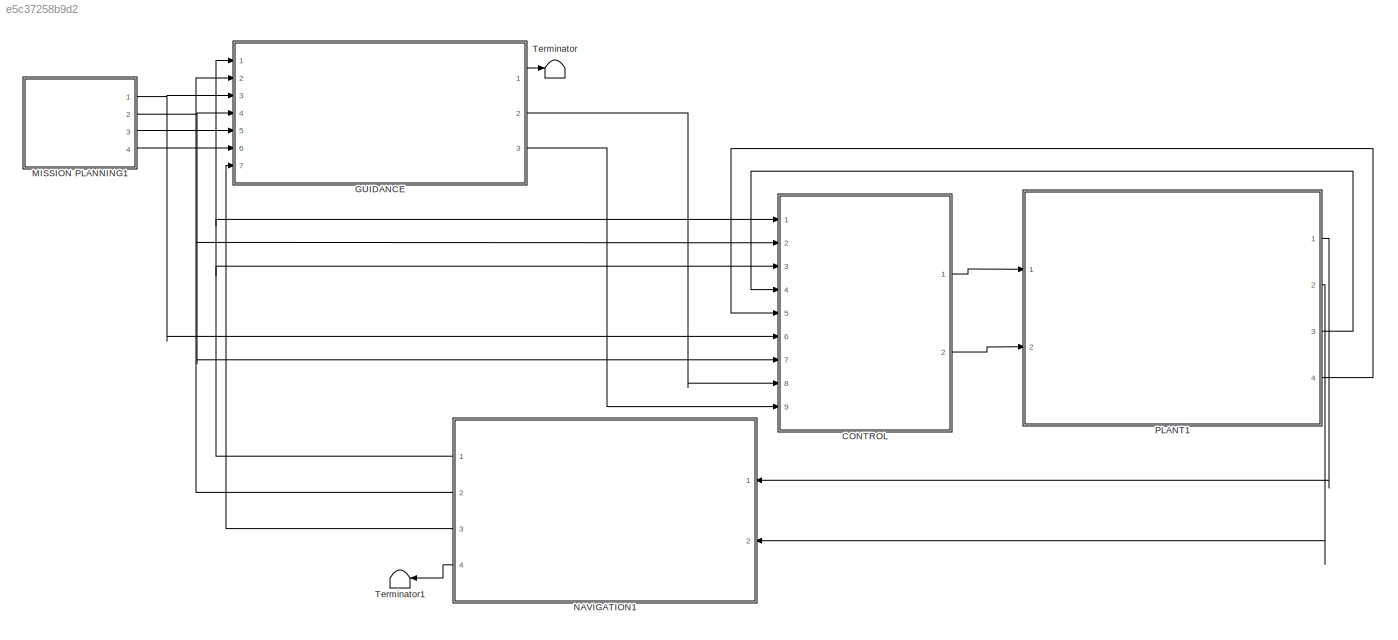
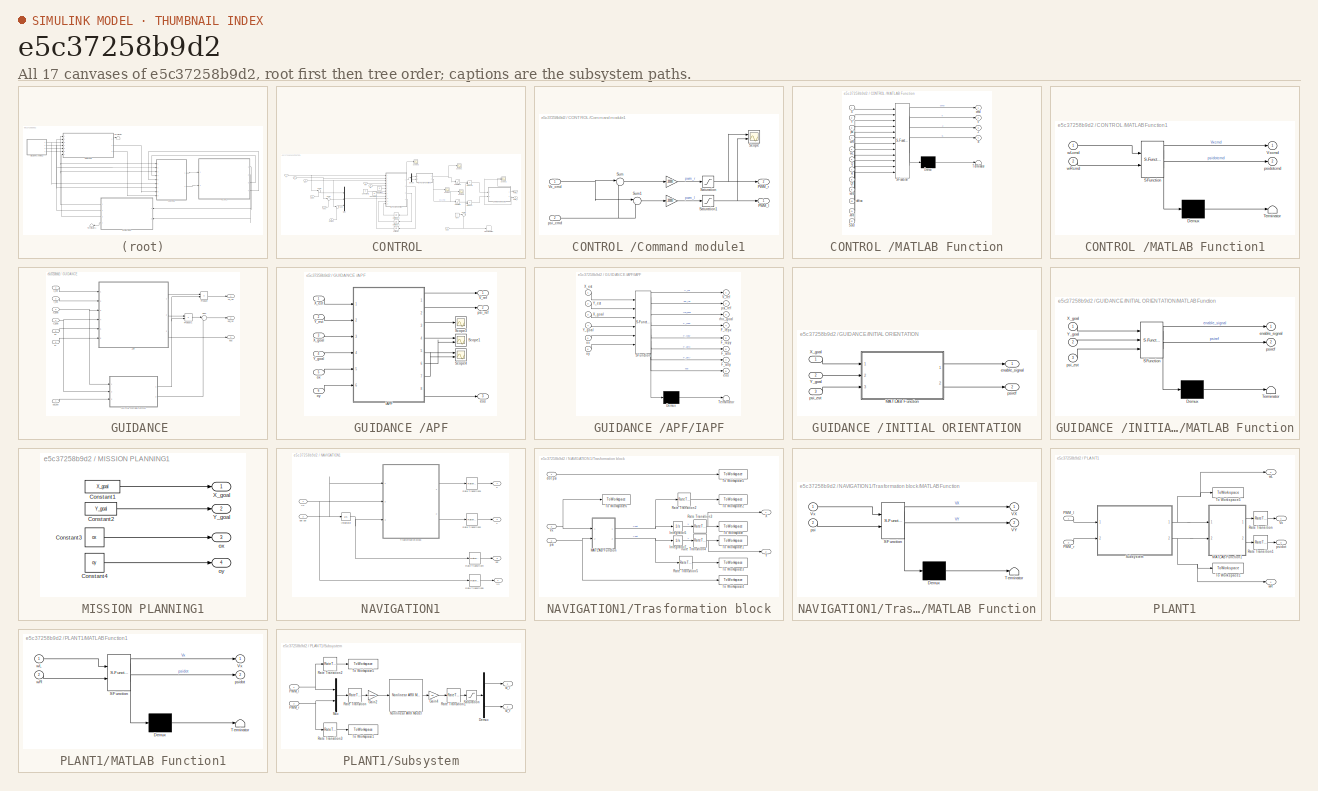
[diagram: thumbnail index - all 17 canvases of the model, root first then tree order]
MODEL slx_e5c37258b9d2
KIND model
CONFIG AbsTol = auto
CONFIG EnableMultiTasking = off
CONFIG FixedStep = 0.01
CONFIG MaxStep = auto
CONFIG MinStep = auto
CONFIG RelTol = 1e-3
CONFIG SampleTimeConstraint = Unconstrained
CONFIG SolverName = ode1
CONFIG StartTime = 0.0
CONFIG StopTime = 60
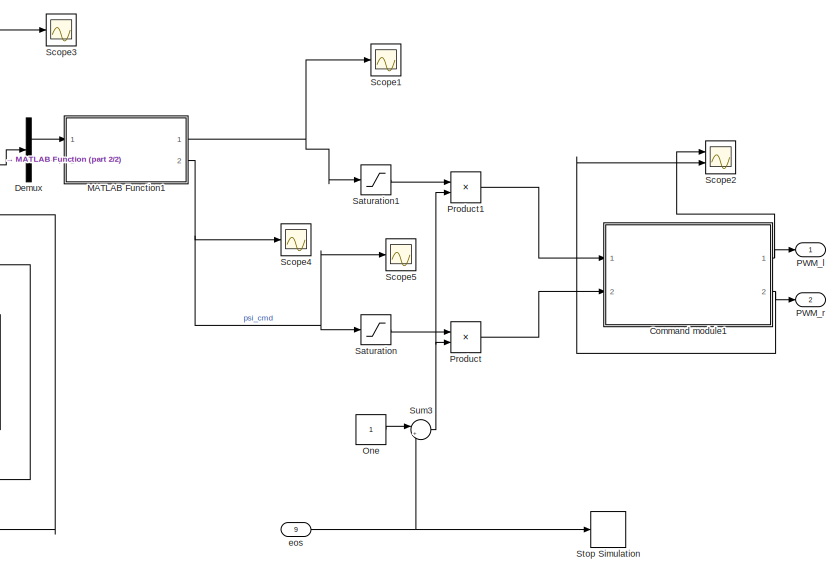
[diagram: CONTROL  - part 1/2, right side, full height]
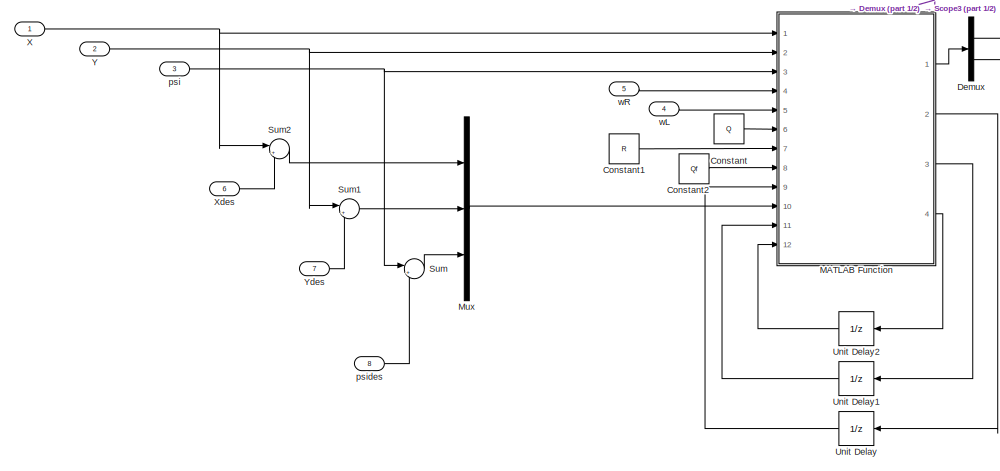
[diagram: CONTROL  - part 2/2, left side, full height]
BLOCK [SubSystem] CONTROL 
  Ports = [9, 2]
  RequestExecContextInheritance = off
BLOCK [SubSystem] CONTROL /Command module1
  Ports = [2, 2]
  RequestExecContextInheritance = off
BLOCK [Gain] CONTROL /Command module1/ 
  Gain = 20000
BLOCK [Gain] CONTROL /Command module1/   
  Gain = 20000
BLOCK [Outport] CONTROL /Command module1/PWM_l
BLOCK [Outport] CONTROL /Command module1/PWM_r
  Port = 2
BLOCK [Saturate] CONTROL /Command module1/Saturation
  LowerLimit = -20000
  UpperLimit = 20000
BLOCK [Saturate] CONTROL /Command module1/Saturation1
  LowerLimit = -20000
  UpperLimit = 20000
BLOCK [Scope] CONTROL /Command module1/Scope
  Floating = off
  NumInputPorts = 2
  Ports = [2]
  ScopeSpecificationString = Simulink.scopes.TimeScopeBlockCfg('CurrentConfiguration', extmgr.ConfigurationSet(extmgr.Configuration('Core','General UI',true),extmgr.Configuration('Core','Source UI',true),extmgr.Configuration('Sources','WiredSimulink',true,'DataLoggingVariableName','ScopeData4'),extmgr.Configuration('Visuals','Time Domain',true,'SerializedDisplays',{struct('MinYLimReal','-11493.67956','MaxYLimReal','19573.9679...<+1486ch>
BLOCK [Sum] CONTROL /Command module1/Sum
  Inputs = |++
  Ports = [2, 1]
BLOCK [Sum] CONTROL /Command module1/Sum1
  Inputs = |+-
  Ports = [2, 1]
BLOCK [Inport] CONTROL /Command module1/Vx_cmd
BLOCK [Inport] CONTROL /Command module1/psi_cmd
  Port = 2
BLOCK [Constant] CONTROL /Constant
  Value = Q
BLOCK [Constant] CONTROL /Constant1
  Value = R
BLOCK [Constant] CONTROL /Constant2
  Value = Qf
BLOCK [Demux] CONTROL /Demux
  Outputs = 2
  Ports = [1, 2]
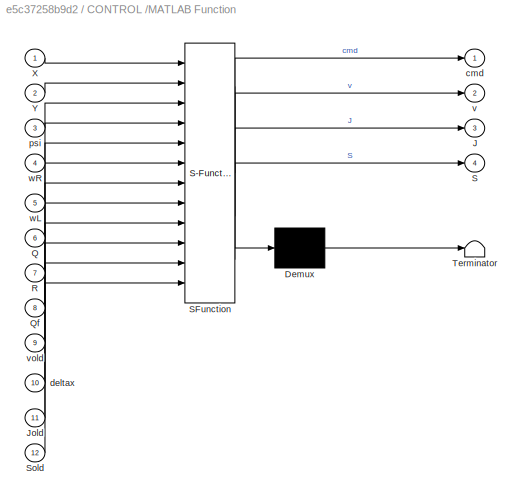
BLOCK [SubSystem] CONTROL /MATLAB Function
  ErrorFcn = Stateflow.Translate.translate
  PermitHierarchicalResolution = ExplicitOnly
  Ports = [12, 4]
  RequestExecContextInheritance = off
  SFBlockType = MATLAB Function
  TreatAsAtomicUnit = on
BLOCK [Demux] CONTROL /MATLAB Function/ Demux 
  Outputs = 1
  Ports = [1, 1]
BLOCK [S-Function] CONTROL /MATLAB Function/ SFunction 
  EnableBusSupport = on
  FunctionName = sf_sfun
  PortCounts = [12 5]
  Ports = [12, 5]
  SFcnIsStateOwnerBlock = off
  SFunctionDeploymentMode = off
  Tag = Stateflow S-Function 4
BLOCK [Terminator] CONTROL /MATLAB Function/ Terminator 
BLOCK [Outport] CONTROL /MATLAB Function/J
  Port = 3
  VectorParamsAs1DForOutWhenUnconnected = off
BLOCK [Inport] CONTROL /MATLAB Function/Jold
  Port = 11
BLOCK [Inport] CONTROL /MATLAB Function/Q
  Port = 6
BLOCK [Inport] CONTROL /MATLAB Function/Qf
  Port = 8
BLOCK [Inport] CONTROL /MATLAB Function/R
  Port = 7
BLOCK [Outport] CONTROL /MATLAB Function/S
  Port = 4
  VectorParamsAs1DForOutWhenUnconnected = off
BLOCK [Inport] CONTROL /MATLAB Function/Sold
  Port = 12
BLOCK [Inport] CONTROL /MATLAB Function/X
BLOCK [Inport] CONTROL /MATLAB Function/Y
  Port = 2
BLOCK [Outport] CONTROL /MATLAB Function/cmd
  VectorParamsAs1DForOutWhenUnconnected = off
BLOCK [Inport] CONTROL /MATLAB Function/deltax
  Port = 10
BLOCK [Inport] CONTROL /MATLAB Function/psi
  Port = 3
BLOCK [Outport] CONTROL /MATLAB Function/v
  Port = 2
  VectorParamsAs1DForOutWhenUnconnected = off
BLOCK [Inport] CONTROL /MATLAB Function/vold
  Port = 9
BLOCK [Inport] CONTROL /MATLAB Function/wL
  Port = 5
BLOCK [Inport] CONTROL /MATLAB Function/wR
  Port = 4
BLOCK [SubSystem] CONTROL /MATLAB Function1
  ErrorFcn = Stateflow.Translate.translate
  PermitHierarchicalResolution = ExplicitOnly
  Ports = [2, 2]
  RequestExecContextInheritance = off
  SFBlockType = MATLAB Function
  TreatAsAtomicUnit = on
BLOCK [Demux] CONTROL /MATLAB Function1/ Demux 
  Outputs = 1
  Ports = [1, 1]
BLOCK [S-Function] CONTROL /MATLAB Function1/ SFunction 
  EnableBusSupport = on
  FunctionName = sf_sfun
  PortCounts = [2 3]
  Ports = [2, 3]
  SFcnIsStateOwnerBlock = off
  SFunctionDeploymentMode = off
  Tag = Stateflow S-Function 5
BLOCK [Terminator] CONTROL /MATLAB Function1/ Terminator 
BLOCK [Outport] CONTROL /MATLAB Function1/Vxcmd
  VectorParamsAs1DForOutWhenUnconnected = off
BLOCK [Outport] CONTROL /MATLAB Function1/psidotcmd
  Port = 2
  VectorParamsAs1DForOutWhenUnconnected = off
BLOCK [Inport] CONTROL /MATLAB Function1/wLcmd
BLOCK [Inport] CONTROL /MATLAB Function1/wRcmd
  Port = 2
BLOCK [Mux] CONTROL /Mux
  DisplayOption = bar
  Inputs = 3
  Ports = [3, 1]
BLOCK [Constant] CONTROL /One
  OutDataTypeStr = Inherit: Inherit via back propagation
BLOCK [Outport] CONTROL /PWM_l
BLOCK [Outport] CONTROL /PWM_r
  Port = 2
BLOCK [Product] CONTROL /Product
  Ports = [2, 1]
BLOCK [Product] CONTROL /Product1
  Ports = [2, 1]
BLOCK [Saturate] CONTROL /Saturation
BLOCK [Saturate] CONTROL /Saturation1
  LowerLimit = -1
  UpperLimit = 1
BLOCK [Scope] CONTROL /Scope1
  Floating = off
  NumInputPorts = 1
  Ports = [1]
  ScopeSpecificationString = Simulink.scopes.TimeScopeBlockCfg('CurrentConfiguration', extmgr.ConfigurationSet(extmgr.Configuration('Core','General UI',true),extmgr.Configuration('Core','Source UI',true),extmgr.Configuration('Sources','WiredSimulink',true,'DataLoggingVariableName','ScopeData2'),extmgr.Configuration('Visuals','Time Domain',true,'SerializedDisplays',{struct('MinYLimReal','-136.68109','MaxYLimReal','56.88715','Y...<+1486ch>
BLOCK [Scope] CONTROL /Scope2
  Floating = off
  NumInputPorts = 2
  Ports = [2]
  ScopeSpecificationString = Simulink.scopes.TimeScopeBlockCfg('CurrentConfiguration', extmgr.ConfigurationSet(extmgr.Configuration('Core','General UI',true),extmgr.Configuration('Core','Source UI',true),extmgr.Configuration('Sources','WiredSimulink',true,'DataLoggingVariableName','ScopeData3'),extmgr.Configuration('Visuals','Time Domain',true,'SerializedDisplays',{struct('MinYLimReal','-12431.03526','MaxYLimReal','18798.4176...<+1499ch>
BLOCK [Scope] CONTROL /Scope3
  Floating = off
  NumInputPorts = 1
  Ports = [1]
  ScopeSpecificationString = Simulink.scopes.TimeScopeBlockCfg('CurrentConfiguration', extmgr.ConfigurationSet(extmgr.Configuration('Core','General UI',true),extmgr.Configuration('Core','Source UI',true),extmgr.Configuration('Sources','WiredSimulink',true,'DataLoggingVariableName','ScopeData1'),extmgr.Configuration('Visuals','Time Domain',true,'SerializedDisplays',{struct('MinYLimReal','-33.45835','MaxYLimReal','74.12788','YL...<+1509ch>
BLOCK [Scope] CONTROL /Scope4
  Floating = off
  NumInputPorts = 1
  Ports = [1]
  ScopeSpecificationString = Simulink.scopes.TimeScopeBlockCfg('CurrentConfiguration', extmgr.ConfigurationSet(extmgr.Configuration('Core','General UI',true),extmgr.Configuration('Core','Source UI',true),extmgr.Configuration('Sources','WiredSimulink',true,'DataLoggingVariableName','ScopeData2'),extmgr.Configuration('Visuals','Time Domain',true,'SerializedDisplays',{struct('MinYLimReal','-6.99156','MaxYLimReal','0.77681','YLab...<+1420ch>
BLOCK [Scope] CONTROL /Scope5
  Floating = off
  NumInputPorts = 1
  Ports = [1]
  ScopeSpecificationString = Simulink.scopes.TimeScopeBlockCfg('CurrentConfiguration', extmgr.ConfigurationSet(extmgr.Configuration('Core','General UI',true),extmgr.Configuration('Core','Source UI',true),extmgr.Configuration('Sources','WiredSimulink',true,'DataLoggingVariableName','ScopeData3'),extmgr.Configuration('Visuals','Time Domain',true,'SerializedDisplays',{struct('MinYLimReal','-6.99156','MaxYLimReal','0.77681','YLab...<+1420ch>
BLOCK [Stop] CONTROL /Stop Simulation
BLOCK [Sum] CONTROL /Sum
  Inputs = |+-
  Ports = [2, 1]
BLOCK [Sum] CONTROL /Sum1
  Inputs = |+-
  Ports = [2, 1]
BLOCK [Sum] CONTROL /Sum2
  Inputs = |+-
  Ports = [2, 1]
BLOCK [Sum] CONTROL /Sum3
  Inputs = |+-
  Ports = [2, 1]
BLOCK [UnitDelay] CONTROL /Unit Delay
  HasFrameUpgradeWarning = on
  InitialCondition = zeros(3,1)
  SampleTime = -1
BLOCK [UnitDelay] CONTROL /Unit Delay1
  HasFrameUpgradeWarning = on
  InitialCondition = 1
  SampleTime = -1
BLOCK [UnitDelay] CONTROL /Unit Delay2
  HasFrameUpgradeWarning = on
  InitialCondition = Qf
  SampleTime = -1
BLOCK [Inport] CONTROL /X
BLOCK [Inport] CONTROL /Xdes
  Port = 6
BLOCK [Inport] CONTROL /Y
  Port = 2
BLOCK [Inport] CONTROL /Ydes
  Port = 7
BLOCK [Inport] CONTROL /eos
  Port = 9
BLOCK [Inport] CONTROL /psi
  Port = 3
BLOCK [Inport] CONTROL /psides
  Port = 8
BLOCK [Inport] CONTROL /wL
  Port = 4
BLOCK [Inport] CONTROL /wR
  Port = 5
BLOCK [SubSystem] GUIDANCE 
  Ports = [7, 3]
  RequestExecContextInheritance = off
BLOCK [SubSystem] GUIDANCE /APF
  Ports = [6, 3]
  RequestExecContextInheritance = off
BLOCK [SubSystem] GUIDANCE /APF/IAPF
  ErrorFcn = Stateflow.Translate.translate
  PermitHierarchicalResolution = ExplicitOnly
  Ports = [6, 8]
  RequestExecContextInheritance = off
  SFBlockType = MATLAB Function
  TreatAsAtomicUnit = on
BLOCK [Demux] GUIDANCE /APF/IAPF/ Demux 
  Outputs = 1
  Ports = [1, 1]
BLOCK [S-Function] GUIDANCE /APF/IAPF/ SFunction 
  EnableBusSupport = on
  FunctionName = sf_sfun
  PortCounts = [6 9]
  Ports = [6, 9]
  SFcnIsStateOwnerBlock = off
  SFunctionDeploymentMode = off
  Tag = Stateflow S-Function 8
BLOCK [Terminator] GUIDANCE /APF/IAPF/ Terminator 
BLOCK [Outport] GUIDANCE /APF/IAPF/F_attx
  Port = 6
BLOCK [Outport] GUIDANCE /APF/IAPF/F_atty
  Port = 7
BLOCK [Outport] GUIDANCE /APF/IAPF/F_repx
  Port = 4
BLOCK [Outport] GUIDANCE /APF/IAPF/F_repy
  Port = 5
BLOCK [Outport] GUIDANCE /APF/IAPF/V_ref
BLOCK [Inport] GUIDANCE /APF/IAPF/X_est
BLOCK [Inport] GUIDANCE /APF/IAPF/X_goal
  Port = 3
BLOCK [Inport] GUIDANCE /APF/IAPF/Y_est
  Port = 2
BLOCK [Inport] GUIDANCE /APF/IAPF/Y_goal
  Port = 4
BLOCK [Outport] GUIDANCE /APF/IAPF/eos
  Port = 8
BLOCK [Inport] GUIDANCE /APF/IAPF/ox
  Port = 5
BLOCK [Inport] GUIDANCE /APF/IAPF/oy
  Port = 6
BLOCK [Outport] GUIDANCE /APF/IAPF/psi_ref
  Port = 2
BLOCK [Outport] GUIDANCE /APF/IAPF/rho_goal
  Port = 3
BLOCK [Scope] GUIDANCE /APF/Scope1
  Floating = off
  NumInputPorts = 2
  Ports = [2]
  ScopeSpecificationString = Simulink.scopes.TimeScopeBlockCfg('CurrentConfiguration', extmgr.ConfigurationSet(extmgr.Configuration('Core','General UI',true),extmgr.Configuration('Core','Source UI',true),extmgr.Configuration('Sources','WiredSimulink',true,'DataLoggingVariableName','ScopeData1'),extmgr.Configuration('Visuals','Time Domain',true,'SerializedDisplays',{struct('MinYLimReal','-0.54866','MaxYLimReal','0.29666','YLab...<+1500ch>
BLOCK [Scope] GUIDANCE /APF/Scope3
  Floating = off
  NumInputPorts = 1
  Ports = [1]
  ScopeSpecificationString = Simulink.scopes.TimeScopeBlockCfg('CurrentConfiguration', extmgr.ConfigurationSet(extmgr.Configuration('Core','General UI',true),extmgr.Configuration('Core','Source UI',true),extmgr.Configuration('Sources','WiredSimulink',true,'DataLoggingVariableName','ScopeData5'),extmgr.Configuration('Visuals','Time Domain',true,'SerializedDisplays',{struct('MinYLimReal','-1.36105','MaxYLimReal','12.72551','YLa...<+1420ch>
BLOCK [Scope] GUIDANCE /APF/Scope4
  Floating = off
  NumInputPorts = 2
  Ports = [2]
  ScopeSpecificationString = Simulink.scopes.TimeScopeBlockCfg('CurrentConfiguration', extmgr.ConfigurationSet(extmgr.Configuration('Core','General UI',true),extmgr.Configuration('Core','Source UI',true),extmgr.Configuration('Sources','WiredSimulink',true,'DataLoggingVariableName','ScopeData2'),extmgr.Configuration('Visuals','Time Domain',true,'SerializedDisplays',{struct('MinYLimReal','-0.03267','MaxYLimReal','0.25688','YLab...<+1437ch>
BLOCK [Outport] GUIDANCE /APF/V_ref
BLOCK [Inport] GUIDANCE /APF/X_est
BLOCK [Inport] GUIDANCE /APF/X_goal
  Port = 3
BLOCK [Inport] GUIDANCE /APF/Y_est
  Port = 2
BLOCK [Inport] GUIDANCE /APF/Y_goal
  Port = 4
BLOCK [Outport] GUIDANCE /APF/eos
  Port = 3
BLOCK [Inport] GUIDANCE /APF/ox
  Port = 5
BLOCK [Inport] GUIDANCE /APF/oy
  Port = 6
BLOCK [Outport] GUIDANCE /APF/psi_ref
  Port = 2
BLOCK [SubSystem] GUIDANCE /INITIAL ORIENTATION
  Ports = [3, 2]
  RequestExecContextInheritance = off
BLOCK [SubSystem] GUIDANCE /INITIAL ORIENTATION/MATLAB Function
  ErrorFcn = Stateflow.Translate.translate
  PermitHierarchicalResolution = ExplicitOnly
  Ports = [3, 2]
  RequestExecContextInheritance = off
  SFBlockType = MATLAB Function
  TreatAsAtomicUnit = on
BLOCK [Demux] GUIDANCE /INITIAL ORIENTATION/MATLAB Function/ Demux 
  Outputs = 1
  Ports = [1, 1]
BLOCK [S-Function] GUIDANCE /INITIAL ORIENTATION/MATLAB Function/ SFunction 
  EnableBusSupport = on
  FunctionName = sf_sfun
  PortCounts = [3 3]
  Ports = [3, 3]
  SFcnIsStateOwnerBlock = off
  SFunctionDeploymentMode = off
  Tag = Stateflow S-Function 9
BLOCK [Terminator] GUIDANCE /INITIAL ORIENTATION/MATLAB Function/ Terminator 
BLOCK [Inport] GUIDANCE /INITIAL ORIENTATION/MATLAB Function/X_goal
BLOCK [Inport] GUIDANCE /INITIAL ORIENTATION/MATLAB Function/Y_goal
  Port = 2
BLOCK [Outport] GUIDANCE /INITIAL ORIENTATION/MATLAB Function/enable_signal
BLOCK [Inport] GUIDANCE /INITIAL ORIENTATION/MATLAB Function/psi_est
  Port = 3
BLOCK [Outport] GUIDANCE /INITIAL ORIENTATION/MATLAB Function/psiref
  Port = 2
BLOCK [Inport] GUIDANCE /INITIAL ORIENTATION/X_goal
BLOCK [Inport] GUIDANCE /INITIAL ORIENTATION/Y_goal
  Port = 2
BLOCK [Outport] GUIDANCE /INITIAL ORIENTATION/enable_signal
BLOCK [Inport] GUIDANCE /INITIAL ORIENTATION/psi_est
  Port = 3
BLOCK [Outport] GUIDANCE /INITIAL ORIENTATION/psiref
  Port = 2
BLOCK [Product] GUIDANCE /Product
  Ports = [2, 1]
BLOCK [Product] GUIDANCE /Product1
  Ports = [2, 1]
BLOCK [Sum] GUIDANCE /Sum
  Inputs = |++
  Ports = [2, 1]
BLOCK [Outport] GUIDANCE /Vx_ref
BLOCK [Inport] GUIDANCE /X_est
BLOCK [Inport] GUIDANCE /X_goal
  Port = 3
BLOCK [Inport] GUIDANCE /Y_est
  Port = 2
BLOCK [Inport] GUIDANCE /Y_goal
  Port = 4
BLOCK [Outport] GUIDANCE /eos
  Port = 3
BLOCK [Inport] GUIDANCE /ox
  Port = 5
BLOCK [Inport] GUIDANCE /oy
  Port = 6
BLOCK [Inport] GUIDANCE /psi_est
  Port = 7
BLOCK [Outport] GUIDANCE /psi_ref
  Port = 2
BLOCK [SubSystem] MISSION PLANNING1
  Ports = [0, 4]
  RequestExecContextInheritance = off
BLOCK [Constant] MISSION PLANNING1/Constant1
  Value = X_goal
BLOCK [Constant] MISSION PLANNING1/Constant2
  Value = Y_goal
BLOCK [Constant] MISSION PLANNING1/Constant3
  Value = ox
BLOCK [Constant] MISSION PLANNING1/Constant4
  Value = oy
BLOCK [Outport] MISSION PLANNING1/X_goal
BLOCK [Outport] MISSION PLANNING1/Y_goal
  Port = 2
BLOCK [Outport] MISSION PLANNING1/ox
  Port = 3
BLOCK [Outport] MISSION PLANNING1/oy
  Port = 4
BLOCK [SubSystem] NAVIGATION1
  Ports = [2, 4]
  RequestExecContextInheritance = off
BLOCK [Outport] NAVIGATION1/ Vx
  Port = 4
BLOCK [Integrator] NAVIGATION1/Integrator
  InitialCondition = psi_0
  Ports = [1, 1]
  WrapState = on
BLOCK [RateTransition] NAVIGATION1/Rate Transition2
  NameLocation = top
  OutPortSampleTime = 0.1
BLOCK [RateTransition] NAVIGATION1/Rate Transition3
  NameLocation = top
  OutPortSampleTime = 0.1
BLOCK [RateTransition] NAVIGATION1/Rate Transition4
  NameLocation = top
  OutPortSampleTime = 0.1
BLOCK [RateTransition] NAVIGATION1/Rate Transition5
  NameLocation = top
  OutPortSampleTime = 0.1
BLOCK [SubSystem] NAVIGATION1/Trasformation block
  Ports = [3, 2]
  RequestExecContextInheritance = off
BLOCK [Integrator] NAVIGATION1/Trasformation block/Integrator5
  InitialCondition = X_0
  Ports = [1, 1]
BLOCK [Integrator] NAVIGATION1/Trasformation block/Integrator7
  InitialCondition = Y_0
  Ports = [1, 1]
BLOCK [SubSystem] NAVIGATION1/Trasformation block/MATLAB Function
  ErrorFcn = Stateflow.Translate.translate
  PermitHierarchicalResolution = ExplicitOnly
  Ports = [2, 2]
  RequestExecContextInheritance = off
  SFBlockType = MATLAB Function
  TreatAsAtomicUnit = on
BLOCK [Demux] NAVIGATION1/Trasformation block/MATLAB Function/ Demux 
  Outputs = 1
  Ports = [1, 1]
BLOCK [S-Function] NAVIGATION1/Trasformation block/MATLAB Function/ SFunction 
  EnableBusSupport = on
  FunctionName = sf_sfun
  PortCounts = [2 3]
  Ports = [2, 3]
  SFcnIsStateOwnerBlock = off
  SFunctionDeploymentMode = off
  Tag = Stateflow S-Function 10
BLOCK [Terminator] NAVIGATION1/Trasformation block/MATLAB Function/ Terminator 
BLOCK [Outport] NAVIGATION1/Trasformation block/MATLAB Function/VX
BLOCK [Outport] NAVIGATION1/Trasformation block/MATLAB Function/VY
  Port = 2
BLOCK [Inport] NAVIGATION1/Trasformation block/MATLAB Function/Vx
BLOCK [Inport] NAVIGATION1/Trasformation block/MATLAB Function/psi
  Port = 2
BLOCK [RateTransition] NAVIGATION1/Trasformation block/Rate Transition2
BLOCK [RateTransition] NAVIGATION1/Trasformation block/Rate Transition3
BLOCK [RateTransition] NAVIGATION1/Trasformation block/Rate Transition4
BLOCK [RateTransition] NAVIGATION1/Trasformation block/Rate Transition5
BLOCK [ToWorkspace] NAVIGATION1/Trasformation block/To Workspace
  FixptAsFi = on
  MaxDataPoints = inf
  Ports = [1]
  SampleTime = -1
  SaveFormat = Structure With Time
  VariableName = X
BLOCK [ToWorkspace] NAVIGATION1/Trasformation block/To Workspace1
  FixptAsFi = on
  MaxDataPoints = inf
  Ports = [1]
  SampleTime = -1
  SaveFormat = Structure With Time
  VariableName = Y
BLOCK [ToWorkspace] NAVIGATION1/Trasformation block/To Workspace2
  FixptAsFi = on
  MaxDataPoints = inf
  Ports = [1]
  SampleTime = -1
  SaveFormat = Structure With Time
  VariableName = Xdot
BLOCK [ToWorkspace] NAVIGATION1/Trasformation block/To Workspace3
  FixptAsFi = on
  MaxDataPoints = inf
  Ports = [1]
  SampleTime = -1
  SaveFormat = Structure With Time
  VariableName = Ydot
BLOCK [ToWorkspace] NAVIGATION1/Trasformation block/To Workspace4
  FixptAsFi = on
  MaxDataPoints = inf
  Ports = [1]
  SampleTime = -1
  SaveFormat = Structure With Time
  VariableName = psi
BLOCK [ToWorkspace] NAVIGATION1/Trasformation block/To Workspace5
  FixptAsFi = on
  MaxDataPoints = inf
  Ports = [1]
  SampleTime = -1
  SaveFormat = Structure With Time
  VariableName = psidot
BLOCK [ToWorkspace] NAVIGATION1/Trasformation block/To Workspace6
  FixptAsFi = on
  MaxDataPoints = inf
  Ports = [1]
  SampleTime = -1
  SaveFormat = Structure With Time
  VariableName = Vx
BLOCK [Inport] NAVIGATION1/Trasformation block/Vx
  Port = 2
BLOCK [Outport] NAVIGATION1/Trasformation block/X
BLOCK [Outport] NAVIGATION1/Trasformation block/Y
  Port = 2
BLOCK [Inport] NAVIGATION1/Trasformation block/dot psi
BLOCK [Inport] NAVIGATION1/Trasformation block/psi
  Port = 3
BLOCK [Inport] NAVIGATION1/Vx
BLOCK [Outport] NAVIGATION1/X
BLOCK [Outport] NAVIGATION1/Y
  Port = 2
BLOCK [Inport] NAVIGATION1/dot psi
  Port = 2
BLOCK [Outport] NAVIGATION1/psi
  Port = 3
BLOCK [SubSystem] PLANT1
  Ports = [2, 4]
  RequestExecContextInheritance = off
BLOCK [SubSystem] PLANT1/MATLAB Function1
  ErrorFcn = Stateflow.Translate.translate
  PermitHierarchicalResolution = ExplicitOnly
  Ports = [2, 2]
  RequestExecContextInheritance = off
  SFBlockType = MATLAB Function
  TreatAsAtomicUnit = on
BLOCK [Demux] PLANT1/MATLAB Function1/ Demux 
  Outputs = 1
  Ports = [1, 1]
BLOCK [S-Function] PLANT1/MATLAB Function1/ SFunction 
  EnableBusSupport = on
  FunctionName = sf_sfun
  PortCounts = [2 3]
  Ports = [2, 3]
  SFcnIsStateOwnerBlock = off
  SFunctionDeploymentMode = off
  Tag = Stateflow S-Function 11
BLOCK [Terminator] PLANT1/MATLAB Function1/ Terminator 
BLOCK [Outport] PLANT1/MATLAB Function1/Vx
BLOCK [Outport] PLANT1/MATLAB Function1/psidot
  Port = 2
BLOCK [Inport] PLANT1/MATLAB Function1/wL
BLOCK [Inport] PLANT1/MATLAB Function1/wR
  Port = 2
BLOCK [Inport] PLANT1/PWM_l
BLOCK [Inport] PLANT1/PWM_r
  Port = 2
BLOCK [RateTransition] PLANT1/Rate Transition
BLOCK [RateTransition] PLANT1/Rate Transition1
BLOCK [SubSystem] PLANT1/Subsystem
  Ports = [2, 2]
  RequestExecContextInheritance = off
BLOCK [Demux] PLANT1/Subsystem/Demux
  Outputs = 2
  Ports = [1, 2]
BLOCK [Gain] PLANT1/Subsystem/Gain2
  Gain = 1/20000
BLOCK [Gain] PLANT1/Subsystem/Gain4
  Gain = 20
BLOCK [Mux] PLANT1/Subsystem/Mux
  DisplayOption = bar
  Inputs = 2
  Ports = [2, 1]
BLOCK [Reference] PLANT1/Subsystem/Nonlinear ARX Model  REF=slident/Models/Nonlinear ARX Model  (lib defined in mdl_f7d4911ca73a)
  Ports = [1, 1]
  SourceBlock = slident/Models/Nonlinear ARX Model
  SourceProductBaseCode = ID
  SourceType = Nonlinear ARX Model
BLOCK [Inport] PLANT1/Subsystem/PWM_l
BLOCK [Inport] PLANT1/Subsystem/PWM_r
  Port = 2
BLOCK [RateTransition] PLANT1/Subsystem/Rate Transition
BLOCK [RateTransition] PLANT1/Subsystem/Rate Transition1
BLOCK [RateTransition] PLANT1/Subsystem/Rate Transition2
BLOCK [RateTransition] PLANT1/Subsystem/Rate Transition3
BLOCK [Saturate] PLANT1/Subsystem/Saturation
  LowerLimit = -20
  UpperLimit = 20
BLOCK [ToWorkspace] PLANT1/Subsystem/To Workspace1
  FixptAsFi = on
  MaxDataPoints = inf
  Ports = [1]
  SampleTime = -1
  SaveFormat = Structure With Time
  VariableName = pwm_r
BLOCK [ToWorkspace] PLANT1/Subsystem/To Workspace5
  FixptAsFi = on
  MaxDataPoints = inf
  Ports = [1]
  SampleTime = -1
  SaveFormat = Structure With Time
  VariableName = pwm_l
BLOCK [Outport] PLANT1/Subsystem/w_l
BLOCK [Outport] PLANT1/Subsystem/w_r
  Port = 2
BLOCK [ToWorkspace] PLANT1/To Workspace1
  FixptAsFi = on
  MaxDataPoints = inf
  Ports = [1]
  SampleTime = -1
  SaveFormat = Structure With Time
  VariableName = wR
BLOCK [ToWorkspace] PLANT1/To Workspace5
  FixptAsFi = on
  MaxDataPoints = inf
  Ports = [1]
  SampleTime = -1
  SaveFormat = Structure With Time
  VariableName = wL
BLOCK [Outport] PLANT1/Vx
BLOCK [Outport] PLANT1/psidot
  Port = 2
BLOCK [Outport] PLANT1/wL
  Port = 3
  VectorParamsAs1DForOutWhenUnconnected = off
BLOCK [Outport] PLANT1/wR
  Port = 4
  VectorParamsAs1DForOutWhenUnconnected = off
BLOCK [Terminator] Terminator
BLOCK [Terminator] Terminator1
  NameLocation = top
LINE CONTROL /Command module1/   :1 -> CONTROL /Command module1/Saturation1:1
LINE CONTROL /Command module1/ :1 -> CONTROL /Command module1/Saturation:1
NET CONTROL /Command module1/Saturation1:1 -> CONTROL /Command module1/PWM_l:1, CONTROL /Command module1/Scope:2
NET CONTROL /Command module1/Saturation:1 -> CONTROL /Command module1/PWM_r:1, CONTROL /Command module1/Scope:1
LINE CONTROL /Command module1/Sum1:1 -> CONTROL /Command module1/   :1
LINE CONTROL /Command module1/Sum:1 -> CONTROL /Command module1/ :1
NET CONTROL /Command module1/Vx_cmd:1 -> CONTROL /Command module1/Sum1:1, CONTROL /Command module1/Sum:1
NET CONTROL /Command module1/psi_cmd:1 -> CONTROL /Command module1/Sum1:2, CONTROL /Command module1/Sum:2
NET CONTROL /Command module1:1 -> CONTROL /PWM_l:1, CONTROL /Scope2:1
NET CONTROL /Command module1:2 -> CONTROL /PWM_r:1, CONTROL /Scope2:2
LINE CONTROL /Constant1:1 -> CONTROL /MATLAB Function:7
LINE CONTROL /Constant2:1 -> CONTROL /MATLAB Function:8
LINE CONTROL /Constant:1 -> CONTROL /MATLAB Function:6
LINE CONTROL /Demux:1 -> CONTROL /MATLAB Function1:1
LINE CONTROL /Demux:2 -> CONTROL /MATLAB Function1:2
NET CONTROL /MATLAB Function1:1 -> CONTROL /Saturation1:1, CONTROL /Scope1:1
NET CONTROL /MATLAB Function1:2 -> CONTROL /Saturation:1, CONTROL /Scope4:1, CONTROL /Scope5:1
NET CONTROL /MATLAB Function:1 -> CONTROL /Demux:1, CONTROL /Scope3:1
LINE CONTROL /MATLAB Function:2 -> CONTROL /Unit Delay:1
LINE CONTROL /MATLAB Function:3 -> CONTROL /Unit Delay1:1
LINE CONTROL /MATLAB Function:4 -> CONTROL /Unit Delay2:1
LINE CONTROL /Mux:1 -> CONTROL /MATLAB Function:10
LINE CONTROL /One:1 -> CONTROL /Sum3:1
LINE CONTROL /Product1:1 -> CONTROL /Command module1:1
LINE CONTROL /Product:1 -> CONTROL /Command module1:2
LINE CONTROL /Saturation1:1 -> CONTROL /Product1:1
LINE CONTROL /Saturation:1 -> CONTROL /Product:1
LINE CONTROL /Sum1:1 -> CONTROL /Mux:2
LINE CONTROL /Sum2:1 -> CONTROL /Mux:1
NET CONTROL /Sum3:1 -> CONTROL /Product1:2, CONTROL /Product:2
LINE CONTROL /Sum:1 -> CONTROL /Mux:3
LINE CONTROL /Unit Delay1:1 -> CONTROL /MATLAB Function:11
LINE CONTROL /Unit Delay2:1 -> CONTROL /MATLAB Function:12
LINE CONTROL /Unit Delay:1 -> CONTROL /MATLAB Function:9
NET CONTROL /X:1 -> CONTROL /MATLAB Function:1, CONTROL /Sum2:1
LINE CONTROL /Xdes:1 -> CONTROL /Sum2:2
NET CONTROL /Y:1 -> CONTROL /MATLAB Function:2, CONTROL /Sum1:1
LINE CONTROL /Ydes:1 -> CONTROL /Sum1:2
NET CONTROL /eos:1 -> CONTROL /Stop Simulation:1, CONTROL /Sum3:2
NET CONTROL /psi:1 -> CONTROL /MATLAB Function:3, CONTROL /Sum:1
LINE CONTROL /psides:1 -> CONTROL /Sum:2
LINE CONTROL /wL:1 -> CONTROL /MATLAB Function:5
LINE CONTROL /wR:1 -> CONTROL /MATLAB Function:4
LINE CONTROL :1 -> PLANT1:1
LINE CONTROL :2 -> PLANT1:2
LINE GUIDANCE /APF/IAPF:1 -> GUIDANCE /APF/V_ref:1
LINE GUIDANCE /APF/IAPF:2 -> GUIDANCE /APF/psi_ref:1
LINE GUIDANCE /APF/IAPF:3 -> GUIDANCE /APF/Scope3:1
LINE GUIDANCE /APF/IAPF:4 -> GUIDANCE /APF/Scope1:1
LINE GUIDANCE /APF/IAPF:5 -> GUIDANCE /APF/Scope4:1
LINE GUIDANCE /APF/IAPF:6 -> GUIDANCE /APF/Scope1:2
LINE GUIDANCE /APF/IAPF:7 -> GUIDANCE /APF/Scope4:2
LINE GUIDANCE /APF/IAPF:8 -> GUIDANCE /APF/eos:1
LINE GUIDANCE /APF/X_est:1 -> GUIDANCE /APF/IAPF:1
LINE GUIDANCE /APF/X_goal:1 -> GUIDANCE /APF/IAPF:3
LINE GUIDANCE /APF/Y_est:1 -> GUIDANCE /APF/IAPF:2
LINE GUIDANCE /APF/Y_goal:1 -> GUIDANCE /APF/IAPF:4
LINE GUIDANCE /APF/ox:1 -> GUIDANCE /APF/IAPF:5
LINE GUIDANCE /APF/oy:1 -> GUIDANCE /APF/IAPF:6
LINE GUIDANCE /APF:1 -> GUIDANCE /Product:1
LINE GUIDANCE /APF:2 -> GUIDANCE /Product1:1
LINE GUIDANCE /APF:3 -> GUIDANCE /eos:1
LINE GUIDANCE /INITIAL ORIENTATION/MATLAB Function:1 -> GUIDANCE /INITIAL ORIENTATION/enable_signal:1
LINE GUIDANCE /INITIAL ORIENTATION/MATLAB Function:2 -> GUIDANCE /INITIAL ORIENTATION/psiref:1
LINE GUIDANCE /INITIAL ORIENTATION/X_goal:1 -> GUIDANCE /INITIAL ORIENTATION/MATLAB Function:1
LINE GUIDANCE /INITIAL ORIENTATION/Y_goal:1 -> GUIDANCE /INITIAL ORIENTATION/MATLAB Function:2
LINE GUIDANCE /INITIAL ORIENTATION/psi_est:1 -> GUIDANCE /INITIAL ORIENTATION/MATLAB Function:3
NET GUIDANCE /INITIAL ORIENTATION:1 -> GUIDANCE /Product1:2, GUIDANCE /Product:2
LINE GUIDANCE /INITIAL ORIENTATION:2 -> GUIDANCE /Sum:2
LINE GUIDANCE /Product1:1 -> GUIDANCE /Sum:1
LINE GUIDANCE /Product:1 -> GUIDANCE /Vx_ref:1
LINE GUIDANCE /Sum:1 -> GUIDANCE /psi_ref:1
LINE GUIDANCE /X_est:1 -> GUIDANCE /APF:1
NET GUIDANCE /X_goal:1 -> GUIDANCE /APF:3, GUIDANCE /INITIAL ORIENTATION:1
LINE GUIDANCE /Y_est:1 -> GUIDANCE /APF:2
NET GUIDANCE /Y_goal:1 -> GUIDANCE /APF:4, GUIDANCE /INITIAL ORIENTATION:2
LINE GUIDANCE /ox:1 -> GUIDANCE /APF:5
LINE GUIDANCE /oy:1 -> GUIDANCE /APF:6
LINE GUIDANCE /psi_est:1 -> GUIDANCE /INITIAL ORIENTATION:3
LINE GUIDANCE :1 -> Terminator:1
LINE GUIDANCE :2 -> CONTROL :8
LINE GUIDANCE :3 -> CONTROL :9
LINE MISSION PLANNING1/Constant1:1 -> MISSION PLANNING1/X_goal:1
LINE MISSION PLANNING1/Constant2:1 -> MISSION PLANNING1/Y_goal:1
LINE MISSION PLANNING1/Constant3:1 -> MISSION PLANNING1/ox:1
LINE MISSION PLANNING1/Constant4:1 -> MISSION PLANNING1/oy:1
NET MISSION PLANNING1:1 -> CONTROL :6, GUIDANCE :3
NET MISSION PLANNING1:2 -> CONTROL :7, GUIDANCE :4
LINE MISSION PLANNING1:3 -> GUIDANCE :5
LINE MISSION PLANNING1:4 -> GUIDANCE :6
NET NAVIGATION1/Integrator:1 -> NAVIGATION1/Rate Transition4:1, NAVIGATION1/Trasformation block:3
LINE NAVIGATION1/Rate Transition2:1 -> NAVIGATION1/Y:1
LINE NAVIGATION1/Rate Transition3:1 -> NAVIGATION1/X:1
LINE NAVIGATION1/Rate Transition4:1 -> NAVIGATION1/psi:1
LINE NAVIGATION1/Rate Transition5:1 -> NAVIGATION1/ Vx:1
LINE NAVIGATION1/Trasformation block/Integrator5:1 -> NAVIGATION1/Trasformation block/Rate Transition3:1
LINE NAVIGATION1/Trasformation block/Integrator7:1 -> NAVIGATION1/Trasformation block/Rate Transition4:1
NET NAVIGATION1/Trasformation block/MATLAB Function:1 -> NAVIGATION1/Trasformation block/Integrator5:1, NAVIGATION1/Trasformation block/Rate Transition2:1
NET NAVIGATION1/Trasformation block/MATLAB Function:2 -> NAVIGATION1/Trasformation block/Integrator7:1, NAVIGATION1/Trasformation block/Rate Transition5:1
LINE NAVIGATION1/Trasformation block/Rate Transition2:1 -> NAVIGATION1/Trasformation block/To Workspace2:1
NET NAVIGATION1/Trasformation block/Rate Transition3:1 -> NAVIGATION1/Trasformation block/To Workspace:1, NAVIGATION1/Trasformation block/X:1
NET NAVIGATION1/Trasformation block/Rate Transition4:1 -> NAVIGATION1/Trasformation block/To Workspace1:1, NAVIGATION1/Trasformation block/Y:1
LINE NAVIGATION1/Trasformation block/Rate Transition5:1 -> NAVIGATION1/Trasformation block/To Workspace3:1
NET NAVIGATION1/Trasformation block/Vx:1 -> NAVIGATION1/Trasformation block/MATLAB Function:1, NAVIGATION1/Trasformation block/To Workspace6:1
LINE NAVIGATION1/Trasformation block/dot psi:1 -> NAVIGATION1/Trasformation block/To Workspace5:1
NET NAVIGATION1/Trasformation block/psi:1 -> NAVIGATION1/Trasformation block/MATLAB Function:2, NAVIGATION1/Trasformation block/To Workspace4:1
LINE NAVIGATION1/Trasformation block:1 -> NAVIGATION1/Rate Transition3:1
LINE NAVIGATION1/Trasformation block:2 -> NAVIGATION1/Rate Transition2:1
NET NAVIGATION1/Vx:1 -> NAVIGATION1/Rate Transition5:1, NAVIGATION1/Trasformation block:2
NET NAVIGATION1/dot psi:1 -> NAVIGATION1/Integrator:1, NAVIGATION1/Trasformation block:1
NET NAVIGATION1:1 -> CONTROL :1, CONTROL :3, GUIDANCE :1
NET NAVIGATION1:2 -> CONTROL :2, GUIDANCE :2
LINE NAVIGATION1:3 -> GUIDANCE :7
LINE NAVIGATION1:4 -> Terminator1:1
LINE PLANT1/MATLAB Function1:1 -> PLANT1/Rate Transition:1
LINE PLANT1/MATLAB Function1:2 -> PLANT1/Rate Transition1:1
LINE PLANT1/PWM_l:1 -> PLANT1/Subsystem:1
LINE PLANT1/PWM_r:1 -> PLANT1/Subsystem:2
LINE PLANT1/Rate Transition1:1 -> PLANT1/psidot:1
LINE PLANT1/Rate Transition:1 -> PLANT1/Vx:1
LINE PLANT1/Subsystem/Demux:1 -> PLANT1/Subsystem/w_l:1
LINE PLANT1/Subsystem/Demux:2 -> PLANT1/Subsystem/w_r:1
LINE PLANT1/Subsystem/Gain2:1 -> PLANT1/Subsystem/Nonlinear ARX Model:1
LINE PLANT1/Subsystem/Gain4:1 -> PLANT1/Subsystem/Rate Transition1:1
LINE PLANT1/Subsystem/Mux:1 -> PLANT1/Subsystem/Rate Transition:1
LINE PLANT1/Subsystem/Nonlinear ARX Model:1 -> PLANT1/Subsystem/Gain4:1
NET PLANT1/Subsystem/PWM_l:1 -> PLANT1/Subsystem/Mux:1, PLANT1/Subsystem/Rate Transition2:1
NET PLANT1/Subsystem/PWM_r:1 -> PLANT1/Subsystem/Mux:2, PLANT1/Subsystem/Rate Transition3:1
LINE PLANT1/Subsystem/Rate Transition1:1 -> PLANT1/Subsystem/Saturation:1
LINE PLANT1/Subsystem/Rate Transition2:1 -> PLANT1/Subsystem/To Workspace5:1
LINE PLANT1/Subsystem/Rate Transition3:1 -> PLANT1/Subsystem/To Workspace1:1
LINE PLANT1/Subsystem/Rate Transition:1 -> PLANT1/Subsystem/Gain2:1
LINE PLANT1/Subsystem/Saturation:1 -> PLANT1/Subsystem/Demux:1
NET PLANT1/Subsystem:1 -> PLANT1/MATLAB Function1:1, PLANT1/To Workspace5:1, PLANT1/wL:1
NET PLANT1/Subsystem:2 -> PLANT1/MATLAB Function1:2, PLANT1/To Workspace1:1, PLANT1/wR:1
LINE PLANT1:1 -> NAVIGATION1:1
LINE PLANT1:2 -> NAVIGATION1:2
LINE PLANT1:3 -> CONTROL :4
LINE PLANT1:4 -> CONTROL :5
note: NET lines group one-source signal fan-out (src -> all destinations, sorted); 1:1 wires keep LINE
CHART NAVIGATION1/Trasformation block/MATLAB Function states=1 transitions=1
  STATE_LABEL 'eML_blk_kernel()'
  STATE_LABEL 'SCRIPT:\nfunction [VX, VY] = fcn(Vx, psi)\n\nM=[cos(psi) -sin(psi); sin(psi) cos(psi)];\n\nX=M*Vx;\nVX=X(1);\nVY=X(2);\n'
CHART PLANT1/MATLAB Function1 states=1 transitions=1
  STATE_LABEL 'eML_blk_kernel()'
  STATE_LABEL 'SCRIPT:\nfunction [Vx, psidot] = fcn(wL, wR)\nr=0.043/2;\nB=0.185;\n\nVx=(wR+wL)*r/2;\npsidot=(wR-wL)*r/B;\n'
CHART CONTROL /MATLAB Function states=1 transitions=1
  STATE_LABEL 'eML_blk_kernel()'
  STATE_LABEL "SCRIPT:\nfunction [cmd, v, J, S]= fcn(X, Y, psi, wR, wL, Q, R, Qf, vold, deltax, Jold, Sold)\n\nr = 0.02;\nB = 0.185;\ndt = 0.01;\n\ntoll = 3*10^-5;\n\nA = [1 0 dt*-sin(psi)*r/2*(wR+wL);...\n     0 1 dt*cos(psi)*r/2*(wR+wL);...\n     0 0 1];\nB = dt*[cos(psi)*r/2 cos(psi)*r/2;...\n     sin(psi)*r/2 sin(psi)*r/2;...\n     -r/B r/B];\n\nJ = [X Y psi]*Qf*[X Y psi]'+[X Y psi]*Q*[X Y psi]'+[wL wR]*R*[wL wR]';\n\ncmd = z...<+337ch>"
CHART CONTROL /MATLAB Function1 states=1 transitions=1
  STATE_LABEL 'eML_blk_kernel()'
  STATE_LABEL 'SCRIPT:\nfunction [Vxcmd,psidotcmd]= fcn(wLcmd, wRcmd)\n\nr = 0.02;\nB = 0.185;\ndt = 0.01;\n\nVxcmd = 10*r/2*(wRcmd+wLcmd);\npsidotcmd = 10*r/B*(wRcmd-wLcmd);\n'
CHART GUIDANCE /APF/IAPF states=1 transitions=1
  STATE_LABEL 'eML_blk_kernel()'
  STATE_LABEL "SCRIPT:\nfunction [V_ref, psi_ref, rho_goal, F_repx, F_repy, F_attx, F_atty, eos]  = fcn(X_est, Y_est, X_goal, Y_goal,  ox, oy)\n\n% Potential field characteristics\nrho_0=0.7;                   % Area of influence of obstacle  [m]\nkp = 0.15;                   % Attractive pottential gain\neta = 0.05;                  % Repulsive potential gain\n\nq=[X_est, Y_est]';           % Actual position [m]       ...<+1828ch>"
CHART GUIDANCE /INITIAL ORIENTATION/MATLAB Function states=1 transitions=1
  STATE_LABEL 'eML_blk_kernel()'
  STATE_LABEL 'SCRIPT:\nfunction [enable_signal, psiref] = fcn(X_goal, Y_goal, psi_est)\npsiref=0;\nenable_signal=0;\n\npersistent en\nif isempty(en)\n    en=0;\nend\n\nif en==0\nif -pi<psi_est && psi_est<=-pi/2 \n  if X_goal>=0 && Y_goal>=0\n      enable_signal=0;\n      psiref=0;\n      en=0;\n  end\n   if X_goal>0 && Y_goal<0\n      enable_signal=0;\n      psiref=0;\n      en=0;\n   end\n    if X_goal<=0 && Y_goal<=0\n      enable_...<+952ch>'
CHART  states=0 transitions=0
CHART  states=0 transitions=0
CHART  states=0 transitions=0
CHART  states=0 transitions=0
CHART  states=0 transitions=0
CHART  states=0 transitions=0
